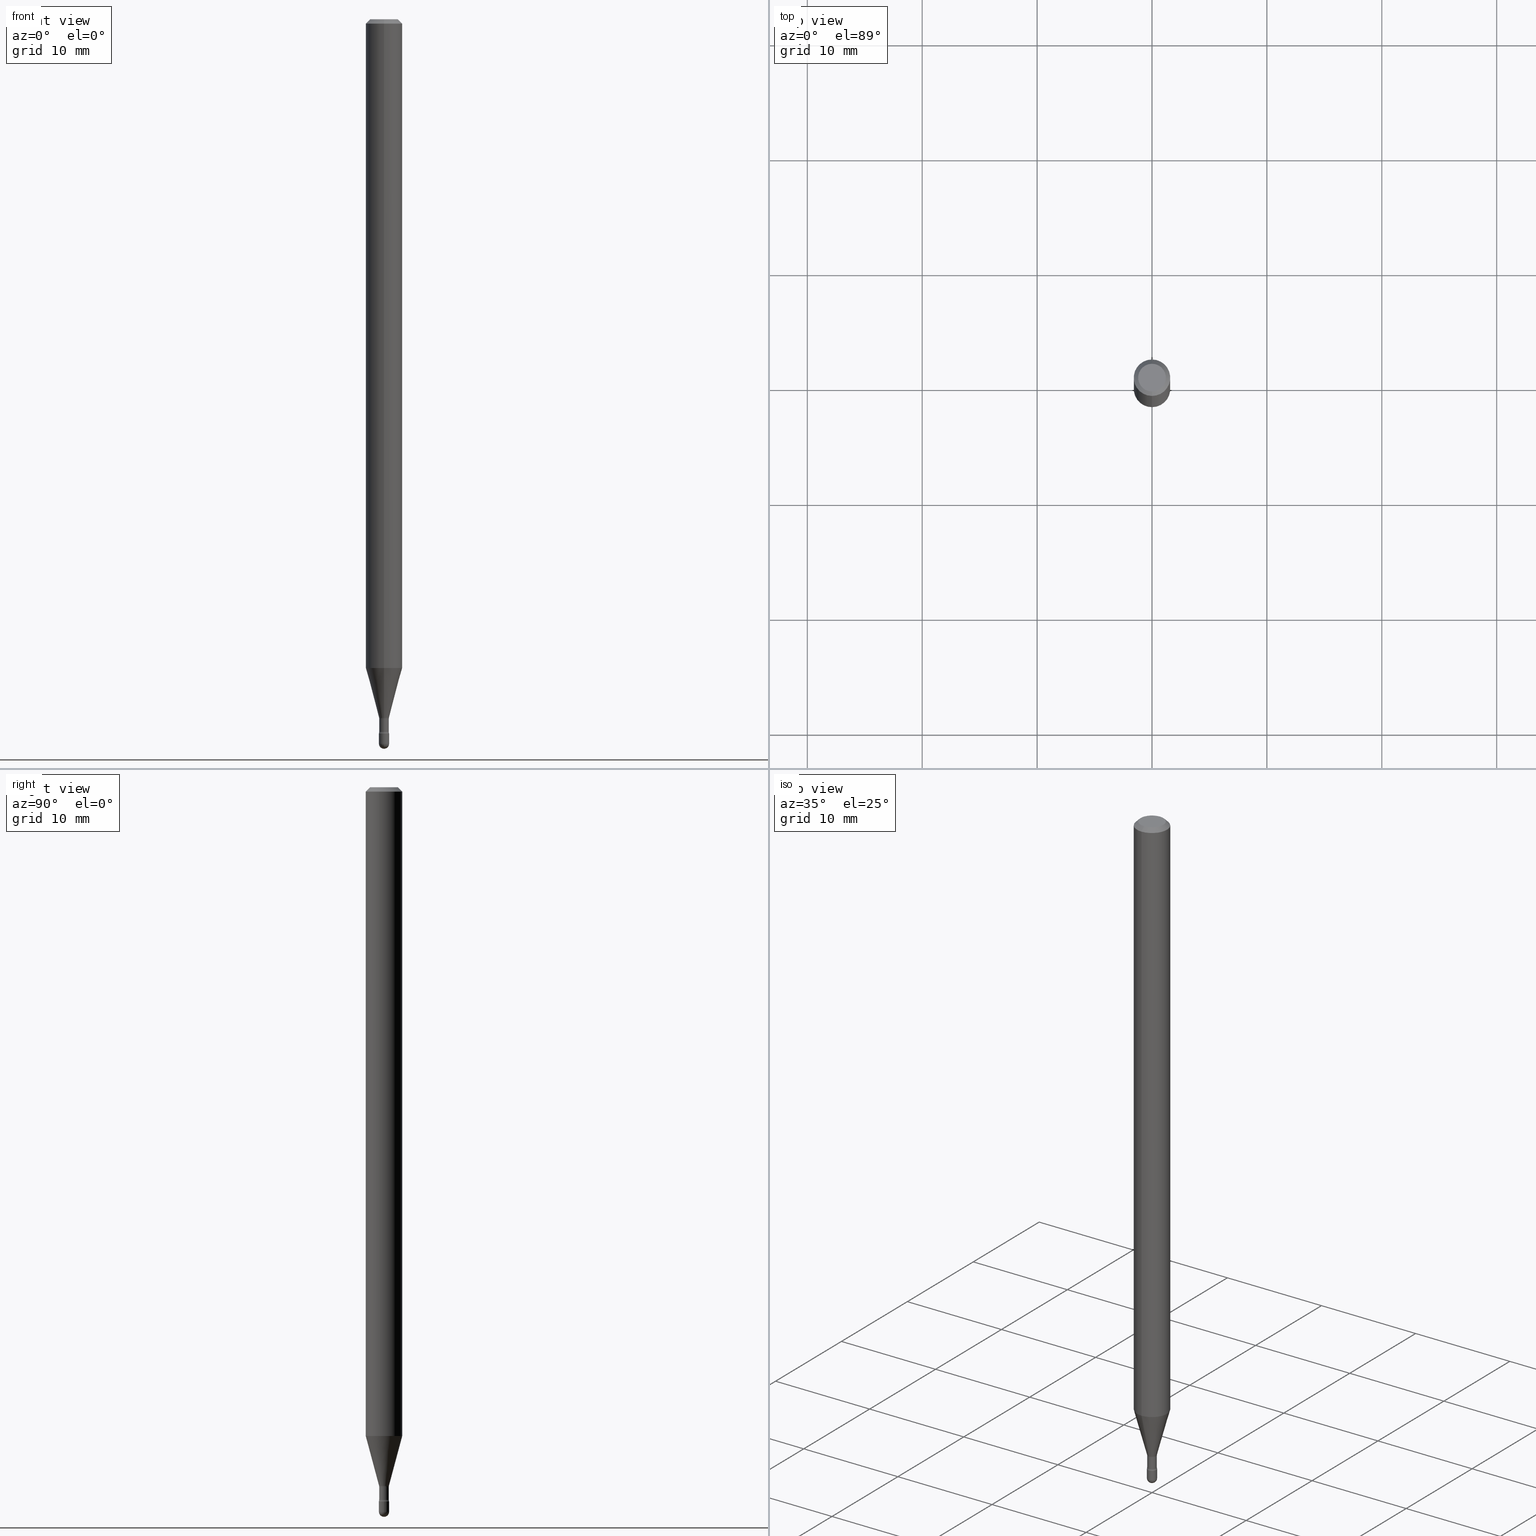
[diagram: canonical four-view strip — front | top / right | iso, engineering-drawing reading convention]
A machine part, canonical four-view strip (front | top / right | iso — engineering-drawing reading convention). The complete STEP part file that produces these views, byte-faithful:
ISO-10303-21;
HEADER;
FILE_DESCRIPTION (( 'STEP AP203' ),
    '1' );
FILE_NAME ('09452.STEP',
    '2024-04-09T23:19:39',
    ( '' ),
    ( '' ),
    'SwSTEP 2.0',
    'SolidWorks 2023',
    '' );
FILE_SCHEMA (( 'CONFIG_CONTROL_DESIGN' ));
ENDSEC;

DATA;
#1 = ORIENTED_EDGE ( 'NONE', *, *, #112, .T. ) ;
#2 = EDGE_LOOP ( 'NONE', ( #439, #155, #394, #190, #248 ) ) ;
#3 = DIRECTION ( 'NONE',  ( -2.445476480015523833E-29, 3.491470349481263853E-15, 1.000000000000000000 ) ) ;
#4 = EDGE_CURVE ( 'NONE', #533, #178, #344, .T. ) ;
#5 = EDGE_LOOP ( 'NONE', ( #391, #356, #425, #41 ) ) ;
#6 = DIRECTION ( 'NONE',  ( -2.445476480015523833E-29, 3.491470349481263853E-15, 1.000000000000000000 ) ) ;
#7 = CALENDAR_DATE ( 2024, 9, 4 ) ;
#8 = LINE ( 'NONE', #431, #31 ) ;
#9 = CC_DESIGN_APPROVAL ( #426, ( #250 ) ) ;
#10 = ORIENTED_EDGE ( 'NONE', *, *, #193, .F. ) ;
#11 = LINE ( 'NONE', #184, #96 ) ;
#12 = PERSON_AND_ORGANIZATION_ROLE ( 'design_owner' ) ;
#13 = CARTESIAN_POINT ( 'NONE',  ( 0.01749999999999999820, -8.727830476773153796E-15, -2.482500000000000817 ) ) ;
#14 = VERTEX_POINT ( 'NONE', #447 ) ;
#15 = CARTESIAN_POINT ( 'NONE',  ( 0.000000000000000000, 0.000000000000000000, 0.000000000000000000 ) ) ;
#16 = APPROVAL_ROLE ( '' ) ;
#17 = EDGE_CURVE ( 'NONE', #84, #533, #20, .T. ) ;
#18 = SPHERICAL_SURFACE ( 'NONE', #316, 0.01750000000000000860 ) ;
#19 = LINE ( 'NONE', #369, #441 ) ;
#20 = CIRCLE ( 'NONE', #557, 0.01499999999999996302 ) ;
#21 = DIRECTION ( 'NONE',  ( -6.982962677686265133E-15, -1.000000000000000000, 0.000000000000000000 ) ) ;
#22 = AXIS2_PLACEMENT_3D ( 'NONE', #211, #478, #214 ) ;
#23 = PERSON_AND_ORGANIZATION ( #53, #454 ) ;
#24 = CARTESIAN_POINT ( 'NONE',  ( -1.222018468594496598E-16, -0.01750000000000852610, -2.447000000000000064 ) ) ;
#25 = CARTESIAN_POINT ( 'NONE',  ( 5.861727071954997320E-29, -8.368992740107411140E-15, -2.396974787463811207 ) ) ;
#26 = CARTESIAN_POINT ( 'NONE',  ( -1.184388162973270680E-16, -0.01696111260567232867, -2.393092501787273285 ) ) ;
#27 = DIRECTION ( 'NONE',  ( 1.000000000000000000, -6.982962677686305365E-15, 0.000000000000000000 ) ) ;
#28 = DIRECTION ( 'NONE',  ( -2.445476480015523833E-29, 3.491470349481263853E-15, 1.000000000000000000 ) ) ;
#29 = APPROVAL_STATUS ( 'not_yet_approved' ) ;
#30 = ADVANCED_FACE ( 'NONE', ( #323 ), #457, .F. ) ;
#31 = VECTOR ( 'NONE', #338, 39.37007874015748143 ) ;
#32 = DIRECTION ( 'NONE',  ( -2.445476480015523553E-29, 3.491470349481263853E-15, 1.000000000000000000 ) ) ;
#33 = ADVANCED_FACE ( 'NONE', ( #72 ), #69, .T. ) ;
#34 = CARTESIAN_POINT ( 'NONE',  ( 5.970579338663442113E-29, -8.524404928127174921E-15, -2.441486607215153537 ) ) ;
#35 = CARTESIAN_POINT ( 'NONE',  ( -1.148697360478804295E-16, -0.01645000000000836418, -2.396974787463811207 ) ) ;
#36 = ORIENTED_EDGE ( 'NONE', *, *, #438, .F. ) ;
#37 = AXIS2_PLACEMENT_3D ( 'NONE', #143, #513, #128 ) ;
#38 = DIRECTION ( 'NONE',  ( 7.105427357601005014E-15, 1.000000000000000000, 0.000000000000000000 ) ) ;
#39 = CIRCLE ( 'NONE', #430, 0.01750000000000000167 ) ;
#40 = EDGE_CURVE ( 'NONE', #432, #379, #359, .T. ) ;
#41 = ORIENTED_EDGE ( 'NONE', *, *, #75, .F. ) ;
#42 = ORIENTED_EDGE ( 'NONE', *, *, #281, .F. ) ;
#43 = ORIENTED_EDGE ( 'NONE', *, *, #66, .F. ) ;
#44 = ORIENTED_EDGE ( 'NONE', *, *, #74, .F. ) ;
#45 = AXIS2_PLACEMENT_3D ( 'NONE', #234, #404, #27 ) ;
#46 = AXIS2_PLACEMENT_3D ( 'NONE', #122, #280, #462 ) ;
#47 = EDGE_LOOP ( 'NONE', ( #220, #353, #1, #390, #304 ) ) ;
#48 = CARTESIAN_POINT ( 'NONE',  ( 5.984062168735030320E-29, -8.543654836149177676E-15, -2.447000000000000064 ) ) ;
#49 = VERTEX_POINT ( 'NONE', #361 ) ;
#50 = DIRECTION ( 'NONE',  ( -6.982962677686265922E-15, -1.000000000000000000, 4.370956789862821150E-15 ) ) ;
#51 = PERSON_AND_ORGANIZATION ( #53, #454 ) ;
#52 = ORIENTED_EDGE ( 'NONE', *, *, #173, .F. ) ;
#53 = PERSON ( 'UNSPECIFIED', 'UNSPECIFIED', 'UNSPECIFIED', ('UNSPECIFIED'), ('UNSPECIFIED'), ('UNSPECIFIED') ) ;
#54 = CARTESIAN_POINT ( 'NONE',  ( -1.169113584055446105E-44, 1.669184350826100908E-30, 4.780733988912460139E-16 ) ) ;
#55 = DIRECTION ( 'NONE',  ( -2.438088387897960049E-29, 3.491481338843145188E-15, 1.000000000000000000 ) ) ;
#56 = AXIS2_PLACEMENT_3D ( 'NONE', #504, #410, #157 ) ;
#57 = EDGE_CURVE ( 'NONE', #351, #429, #76, .T. ) ;
#58 = DIRECTION ( 'NONE',  ( -6.982962677686266711E-15, -1.000000000000000000, 3.491470349481264247E-15 ) ) ;
#59 = PERSON_AND_ORGANIZATION ( #53, #454 ) ;
#60 = DIRECTION ( 'NONE',  ( -2.445476480015523833E-29, 3.491470349481263853E-15, 1.000000000000000000 ) ) ;
#61 = APPLICATION_PROTOCOL_DEFINITION ( 'international standard', 'config_control_design', 1994, #523 ) ;
#62 = DIRECTION ( 'NONE',  ( -2.445476480015523833E-29, 3.491470349481263853E-15, 1.000000000000000000 ) ) ;
#63 = EDGE_LOOP ( 'NONE', ( #253, #477, #186, #290 ) ) ;
#64 = DIRECTION ( 'NONE',  ( 1.000000000000000000, -6.982962677686265922E-15, 4.876176775795936353E-29 ) ) ;
#65 = MECHANICAL_CONTEXT ( 'NONE', #523, 'mechanical' ) ;
#66 = EDGE_CURVE ( 'NONE', #429, #351, #385, .T. ) ;
#67 = DIRECTION ( 'NONE',  ( -1.807323732225328562E-15, -0.2588190451025179639, 0.9659258262890690894 ) ) ;
#68 = CIRCLE ( 'NONE', #498, 0.06250000000000000000 ) ;
#69 = CYLINDRICAL_SURFACE ( 'NONE', #85, 0.01645000000000003404 ) ;
#70 = EDGE_CURVE ( 'NONE', #84, #293, #419, .T. ) ;
#71 = CARTESIAN_POINT ( 'NONE',  ( 6.070876311354603530E-29, -8.667602423678111529E-15, -2.482500000000000817 ) ) ;
#72 = FACE_OUTER_BOUND ( 'NONE', #5, .T. ) ;
#73 = DIRECTION ( 'NONE',  ( 2.445476480015523553E-29, -3.491470349481263853E-15, -1.000000000000000000 ) ) ;
#74 = EDGE_CURVE ( 'NONE', #138, #566, #328, .T. ) ;
#75 = EDGE_CURVE ( 'NONE', #293, #288, #19, .T. ) ;
#76 = CIRCLE ( 'NONE', #488, 0.01696111260566397425 ) ;
#77 = AXIS2_PLACEMENT_3D ( 'NONE', #392, #100, #469 ) ;
#78 = CARTESIAN_POINT ( 'NONE',  ( 5.436634283795472207E-29, -7.762024111851079377E-15, -2.223139060311453363 ) ) ;
#79 = DIRECTION ( 'NONE',  ( -2.445476480015523833E-29, 3.491470349481263853E-15, 1.000000000000000000 ) ) ;
#80 = DIRECTION ( 'NONE',  ( -6.982962677686265922E-15, -1.000000000000000000, 3.483106191921935554E-15 ) ) ;
#81 = ORIENTED_EDGE ( 'NONE', *, *, #562, .F. ) ;
#82 = ADVANCED_BREP_SHAPE_REPRESENTATION ( '09452', ( #294, #296, #378 ), #303 ) ;
#83 = CARTESIAN_POINT ( 'NONE',  ( 4.440892098500625669E-16, 0.06250000000000000000, 2.598565020486670724E-16 ) ) ;
#84 = VERTEX_POINT ( 'NONE', #205 ) ;
#85 = AXIS2_PLACEMENT_3D ( 'NONE', #273, #62, #546 ) ;
#86 = AXIS2_PLACEMENT_3D ( 'NONE', #463, #554, #168 ) ;
#87 = CC_DESIGN_APPROVAL ( #491, ( #549 ) ) ;
#88 = CC_DESIGN_PERSON_AND_ORGANIZATION_ASSIGNMENT ( #495, #185, ( #115 ) ) ;
#89 = ORIENTED_EDGE ( 'NONE', *, *, #500, .F. ) ;
#90 = CARTESIAN_POINT ( 'NONE',  ( -1.184388162973270680E-16, -0.01696111260567232867, -2.393092501787273285 ) ) ;
#91 = ORIENTED_EDGE ( 'NONE', *, *, #411, .T. ) ;
#92 = VERTEX_POINT ( 'NONE', #123 ) ;
#93 = ORIENTED_EDGE ( 'NONE', *, *, #145, .T. ) ;
#94 = EDGE_CURVE ( 'NONE', #178, #533, #267, .T. ) ;
#95 = AXIS2_PLACEMENT_3D ( 'NONE', #238, #116, #274 ) ;
#96 = VECTOR ( 'NONE', #532, 39.37007874015748143 ) ;
#97 = DIRECTION ( 'NONE',  ( -2.445468806185136597E-29, 3.491481338843145583E-15, 1.000000000000000000 ) ) ;
#98 = ORIENTED_EDGE ( 'NONE', *, *, #57, .T. ) ;
#99 = DIRECTION ( 'NONE',  ( 7.105427357601005014E-15, 1.000000000000000000, 0.000000000000000000 ) ) ;
#100 = DIRECTION ( 'NONE',  ( -2.445476480015523833E-29, 3.491470349481263853E-15, 1.000000000000000000 ) ) ;
#101 = CARTESIAN_POINT ( 'NONE',  ( -1.169113584055446105E-44, 1.669184350826100908E-30, 4.780733988912460139E-16 ) ) ;
#102 = EDGE_LOOP ( 'NONE', ( #382, #93, #10, #52 ) ) ;
#103 = DIRECTION ( 'NONE',  ( -2.445476480015523833E-29, 3.491470349481263853E-15, 1.000000000000000000 ) ) ;
#104 = DATE_AND_TIME ( #434, #499 ) ;
#105 = CIRCLE ( 'NONE', #358, 0.01500000000000002720 ) ;
#106 = CONICAL_SURFACE ( 'NONE', #349, 0.01696111260566397425, 0.2617993877991500740 ) ;
#107 = ORIENTED_EDGE ( 'NONE', *, *, #57, .F. ) ;
#108 = CYLINDRICAL_SURFACE ( 'NONE', #276, 0.06250000000000000000 ) ;
#109 = DATE_AND_TIME ( #490, #292 ) ;
#110 = ORIENTED_EDGE ( 'NONE', *, *, #223, .T. ) ;
#111 = DIRECTION ( 'NONE',  ( 6.982962677686265922E-15, 1.000000000000000000, -3.483106191921935554E-15 ) ) ;
#112 = EDGE_CURVE ( 'NONE', #519, #516, #370, .T. ) ;
#113 = CARTESIAN_POINT ( 'NONE',  ( 0.000000000000000000, 0.000000000000000000, 0.000000000000000000 ) ) ;
#114 = CARTESIAN_POINT ( 'NONE',  ( 5.984080946597987231E-29, -8.543627945180652230E-15, -2.447000000000000064 ) ) ;
#115 = PRODUCT_DEFINITION ( 'UNKNOWN', '', #250, #387 ) ;
#116 = DIRECTION ( 'NONE',  ( -2.445476480015523833E-29, 3.491470349481263853E-15, 1.000000000000000000 ) ) ;
#117 = CIRCLE ( 'NONE', #282, 0.01644999999999999588 ) ;
#118 = TOROIDAL_SURFACE ( 'NONE', #235, 0.03145000000000004042, 0.01499999999999996649 ) ;
#119 = CARTESIAN_POINT ( 'NONE',  ( 6.070876311354603530E-29, -8.667602423678111529E-15, -2.482500000000000817 ) ) ;
#120 = DIRECTION ( 'NONE',  ( 6.982962677686265922E-15, 1.000000000000000000, -3.491470349481263853E-15 ) ) ;
#121 = DIRECTION ( 'NONE',  ( -2.445476480015523833E-29, 3.491470349481263853E-15, 1.000000000000000000 ) ) ;
#122 = CARTESIAN_POINT ( 'NONE',  ( -2.196141762131744400E-16, -0.03145000000000837403, -2.396974787463811207 ) ) ;
#123 = CARTESIAN_POINT ( 'NONE',  ( -0.01750000000000000167, -8.481283651155627354E-15, -2.447000000000000064 ) ) ;
#124 = CARTESIAN_POINT ( 'NONE',  ( 5.861745465932958516E-29, -8.368966398884050390E-15, -2.396974787463811207 ) ) ;
#125 = AXIS2_PLACEMENT_3D ( 'NONE', #363, #103, #398 ) ;
#126 = AXIS2_PLACEMENT_3D ( 'NONE', #266, #230, #318 ) ;
#127 = CARTESIAN_POINT ( 'NONE',  ( 5.852251427622284695E-29, -8.355411513556201867E-15, -2.393092501787273285 ) ) ;
#128 = DIRECTION ( 'NONE',  ( -6.982962677686265133E-15, -1.000000000000000000, 3.491470349481263853E-15 ) ) ;
#129 = CARTESIAN_POINT ( 'NONE',  ( 3.316907271900976096E-16, 0.04749999999999999362, 3.181808081214563162E-17 ) ) ;
#130 = ORIENTED_EDGE ( 'NONE', *, *, #17, .F. ) ;
#131 = EDGE_CURVE ( 'NONE', #516, #444, #236, .T. ) ;
#132 = DIRECTION ( 'NONE',  ( 1.000000000000000000, -7.105427357601001070E-15, 4.926315373961213583E-29 ) ) ;
#133 = EDGE_LOOP ( 'NONE', ( #130, #511, #423, #343 ) ) ;
#134 = CONICAL_SURFACE ( 'NONE', #126, 0.06250000000000000000, 0.7853981633974483900 ) ;
#135 = CARTESIAN_POINT ( 'NONE',  ( 6.070876311354602409E-29, -8.667602423678108373E-15, -2.482499999999999929 ) ) ;
#136 = ORIENTED_EDGE ( 'NONE', *, *, #281, .T. ) ;
#137 = EDGE_LOOP ( 'NONE', ( #183, #522, #255, #218 ) ) ;
#138 = VERTEX_POINT ( 'NONE', #407 ) ;
#139 = ORIENTED_EDGE ( 'NONE', *, *, #264, .T. ) ;
#140 = CARTESIAN_POINT ( 'NONE',  ( -4.364351673553912750E-16, -0.06250000000000005551, -0.01499999999999986587 ) ) ;
#141 = CONICAL_SURFACE ( 'NONE', #453, 0.06250000000000000000, 0.7853981633974483900 ) ;
#142 = ORIENTED_EDGE ( 'NONE', *, *, #505, .F. ) ;
#143 = CARTESIAN_POINT ( 'NONE',  ( 5.970579338663442113E-29, -8.524404928127174921E-15, -2.441486607215153537 ) ) ;
#144 = APPROVAL_DATE_TIME ( #530, #426 ) ;
#145 = EDGE_CURVE ( 'NONE', #351, #49, #325, .T. ) ;
#146 = ORIENTED_EDGE ( 'NONE', *, *, #326, .T. ) ;
#147 = DIRECTION ( 'NONE',  ( -6.982962677686265922E-15, -1.000000000000000000, 3.491470349481265036E-15 ) ) ;
#148 = PERSON_AND_ORGANIZATION_ROLE ( 'design_supplier' ) ;
#149 = EDGE_LOOP ( 'NONE', ( #36, #91, #110, #44 ) ) ;
#150 = DIRECTION ( 'NONE',  ( -6.982962677686265922E-15, -1.000000000000000000, 0.000000000000000000 ) ) ;
#151 = COORDINATED_UNIVERSAL_TIME_OFFSET ( 5, 0, .BEHIND. ) ;
#152 = DIRECTION ( 'NONE',  ( 1.000000000000000000, -6.982962677686265922E-15, 4.876176775795935793E-29 ) ) ;
#153 = VECTOR ( 'NONE', #199, 39.37007874015748143 ) ;
#154 = CIRCLE ( 'NONE', #324, 0.01749999999999999820 ) ;
#155 = ORIENTED_EDGE ( 'NONE', *, *, #502, .T. ) ;
#156 = FACE_OUTER_BOUND ( 'NONE', #287, .T. ) ;
#157 = DIRECTION ( 'NONE',  ( -6.982962677686265133E-15, -1.000000000000000000, 0.000000000000000000 ) ) ;
#158 = FACE_OUTER_BOUND ( 'NONE', #259, .T. ) ;
#159 = DATE_AND_TIME ( #7, #472 ) ;
#160 = DIRECTION ( 'NONE',  ( -6.982962677686266711E-15, -1.000000000000000000, 0.000000000000000000 ) ) ;
#161 = AXIS2_PLACEMENT_3D ( 'NONE', #412, #32, #367 ) ;
#162 = APPROVAL_PERSON_ORGANIZATION ( #51, #426, #16 ) ;
#163 =( LENGTH_UNIT ( ) NAMED_UNIT ( * ) SI_UNIT ( $, .METRE. ) );
#164 = LINE ( 'NONE', #26, #181 ) ;
#165 = DIRECTION ( 'NONE',  ( 1.839019923739598738E-15, 0.2588190451025247363, 0.9659258262890673130 ) ) ;
#166 = DIRECTION ( 'NONE',  ( -6.982962677686265922E-15, -1.000000000000000000, 0.000000000000000000 ) ) ;
#167 = CALENDAR_DATE ( 2024, 9, 4 ) ;
#168 = DIRECTION ( 'NONE',  ( -6.982962677686265133E-15, -1.000000000000000000, 0.000000000000000000 ) ) ;
#169 = CIRCLE ( 'NONE', #565, 0.01750000000000000860 ) ;
#170 = ORIENTED_EDGE ( 'NONE', *, *, #438, .T. ) ;
#171 =( NAMED_UNIT ( * ) PLANE_ANGLE_UNIT ( ) SI_UNIT ( $, .RADIAN. ) );
#172 = ORIENTED_EDGE ( 'NONE', *, *, #471, .T. ) ;
#173 = EDGE_CURVE ( 'NONE', #429, #187, #164, .T. ) ;
#174 = AXIS2_PLACEMENT_3D ( 'NONE', #182, #355, #537 ) ;
#175 = AXIS2_PLACEMENT_3D ( 'NONE', #129, #73, #120 ) ;
#176 = CARTESIAN_POINT ( 'NONE',  ( 6.070876311354602409E-29, -8.667602423678108373E-15, -2.482499999999999929 ) ) ;
#177 = EDGE_LOOP ( 'NONE', ( #473, #531, #561, #209 ) ) ;
#178 = VERTEX_POINT ( 'NONE', #24 ) ;
#179 = SPHERICAL_SURFACE ( 'NONE', #348, 0.01750000000000000860 ) ;
#180 = ADVANCED_FACE ( 'NONE', ( #197 ), #365, .T. ) ;
#181 = VECTOR ( 'NONE', #67, 39.37007874015748854 ) ;
#182 = CARTESIAN_POINT ( 'NONE',  ( 5.984080946597987231E-29, -8.543627945180652230E-15, -2.447000000000000064 ) ) ;
#183 = ORIENTED_EDGE ( 'NONE', *, *, #411, .F. ) ;
#184 = CARTESIAN_POINT ( 'NONE',  ( 1.168842800325367224E-16, 0.01645000000000003404, 4.206387116422791825E-16 ) ) ;
#185 = PERSON_AND_ORGANIZATION_ROLE ( 'creator' ) ;
#186 = ORIENTED_EDGE ( 'NONE', *, *, #223, .F. ) ;
#187 = VERTEX_POINT ( 'NONE', #461 ) ;
#188 = CARTESIAN_POINT ( 'NONE',  ( -1.148697360478798871E-16, -0.01645000000000860010, -2.441486607215153537 ) ) ;
#189 = ADVANCED_FACE ( 'NONE', ( #545 ), #465, .F. ) ;
#190 = ORIENTED_EDGE ( 'NONE', *, *, #131, .F. ) ;
#191 = CARTESIAN_POINT ( 'NONE',  ( 3.668214720023305841E-31, -5.237205524221924868E-17, -0.01500000000000008271 ) ) ;
#192 = CARTESIAN_POINT ( 'NONE',  ( 5.852251427622284695E-29, -8.355411513556201867E-15, -2.393092501787273285 ) ) ;
#193 = EDGE_CURVE ( 'NONE', #187, #49, #302, .T. ) ;
#194 = CIRCLE ( 'NONE', #507, 0.01749999999999999820 ) ;
#195 = CIRCLE ( 'NONE', #77, 0.04749999999999999362 ) ;
#196 = FACE_OUTER_BOUND ( 'NONE', #2, .T. ) ;
#197 = FACE_OUTER_BOUND ( 'NONE', #63, .T. ) ;
#198 = DIRECTION ( 'NONE',  ( -6.982962677686265133E-15, -1.000000000000000000, 3.491470349481263853E-15 ) ) ;
#199 = DIRECTION ( 'NONE',  ( -2.445468806185136877E-29, 3.491481338843145188E-15, 1.000000000000000000 ) ) ;
#200 = CARTESIAN_POINT ( 'NONE',  ( -1.169113584055446105E-44, 1.669184350826100908E-30, 4.780733988912460139E-16 ) ) ;
#201 = CONICAL_SURFACE ( 'NONE', #125, 0.01696111260566397425, 0.2617993877991500740 ) ;
#202 = CIRCLE ( 'NONE', #216, 0.01750000000000000167 ) ;
#203 = CC_DESIGN_SECURITY_CLASSIFICATION ( #549, ( #250 ) ) ;
#204 =( CONVERSION_BASED_UNIT ( 'INCH', #240 ) LENGTH_UNIT ( ) NAMED_UNIT ( #322 ) );
#205 = CARTESIAN_POINT ( 'NONE',  ( 1.206146293953369389E-16, 0.01644999999999155124, -2.441486607215153537 ) ) ;
#206 = DIRECTION ( 'NONE',  ( -6.982962677686265922E-15, -1.000000000000000000, 4.370956789862821150E-15 ) ) ;
#207 = VERTEX_POINT ( 'NONE', #140 ) ;
#208 = CC_DESIGN_APPROVAL ( #239, ( #115 ) ) ;
#209 = ORIENTED_EDGE ( 'NONE', *, *, #529, .F. ) ;
#210 = EDGE_LOOP ( 'NONE', ( #224, #98, #521, #42 ) ) ;
#211 = CARTESIAN_POINT ( 'NONE',  ( 3.668214720023305841E-31, -5.237205524221924868E-17, -0.01500000000000008271 ) ) ;
#212 = EDGE_LOOP ( 'NONE', ( #380, #43, #309, #317 ) ) ;
#213 = ORIENTED_EDGE ( 'NONE', *, *, #418, .T. ) ;
#214 = DIRECTION ( 'NONE',  ( -6.982962677686265922E-15, -1.000000000000000000, 3.483106191921935554E-15 ) ) ;
#215 = EDGE_LOOP ( 'NONE', ( #89, #299, #81, #254 ) ) ;
#216 = AXIS2_PLACEMENT_3D ( 'NONE', #422, #97, #427 ) ;
#217 = CARTESIAN_POINT ( 'NONE',  ( 1.222018468595703801E-16, 0.01749999999999133499, -2.482500000000000817 ) ) ;
#218 = ORIENTED_EDGE ( 'NONE', *, *, #486, .T. ) ;
#219 = FACE_OUTER_BOUND ( 'NONE', #559, .T. ) ;
#220 = ORIENTED_EDGE ( 'NONE', *, *, #502, .F. ) ;
#221 = CARTESIAN_POINT ( 'NONE',  ( 3.668214720023305841E-31, -5.237205524221924868E-17, -0.01500000000000008271 ) ) ;
#222 = APPROVAL_STATUS ( 'not_yet_approved' ) ;
#223 = EDGE_CURVE ( 'NONE', #207, #566, #68, .T. ) ;
#224 = ORIENTED_EDGE ( 'NONE', *, *, #145, .F. ) ;
#225 = AXIS2_PLACEMENT_3D ( 'NONE', #114, #373, #319 ) ;
#226 = LOCAL_TIME ( 19, 19, 39.00000000000000000, #535 ) ;
#227 = LOCAL_TIME ( 19, 19, 39.00000000000000000, #331 ) ;
#228 = CARTESIAN_POINT ( 'NONE',  ( 6.070876311354603530E-29, -8.667602423678111529E-15, -2.482500000000000817 ) ) ;
#229 = PERSON_AND_ORGANIZATION_ROLE ( 'classification_officer' ) ;
#230 = DIRECTION ( 'NONE',  ( 2.445476480015523833E-29, -3.491470349481263853E-15, -1.000000000000000000 ) ) ;
#231 = APPLICATION_PROTOCOL_DEFINITION ( 'international standard', 'config_control_design', 1994, #342 ) ;
#232 = DIRECTION ( 'NONE',  ( -2.445476480015523833E-29, 3.491470349481263853E-15, 1.000000000000000000 ) ) ;
#233 = DIRECTION ( 'NONE',  ( -2.445476480015523833E-29, 3.491470349481263853E-15, 1.000000000000000000 ) ) ;
#234 = CARTESIAN_POINT ( 'NONE',  ( 6.070876311354603530E-29, -8.667602423678111529E-15, -2.482500000000000817 ) ) ;
#235 = AXIS2_PLACEMENT_3D ( 'NONE', #34, #335, #512 ) ;
#236 = LINE ( 'NONE', #493, #153 ) ;
#237 = ADVANCED_FACE ( 'NONE', ( #245 ), #291, .F. ) ;
#238 = CARTESIAN_POINT ( 'NONE',  ( 5.852251427622284695E-29, -8.355411513556201867E-15, -2.393092501787273285 ) ) ;
#239 = APPROVAL ( #313, 'UNSPECIFIED' ) ;
#240 = LENGTH_MEASURE_WITH_UNIT ( LENGTH_MEASURE( 0.02539999999999999897 ), #163 );
#241 = CARTESIAN_POINT ( 'NONE',  ( 5.436634283795472207E-29, -7.762024111851079377E-15, -2.223139060311453363 ) ) ;
#242 = DIRECTION ( 'NONE',  ( -2.445476480015523833E-29, 3.491470349481263853E-15, 1.000000000000000000 ) ) ;
#243 = AXIS2_PLACEMENT_3D ( 'NONE', #539, #233, #21 ) ;
#244 = CARTESIAN_POINT ( 'NONE',  ( 1.243449787580772513E-16, 0.01749999999999143907, -2.447000000000000064 ) ) ;
#245 = FACE_OUTER_BOUND ( 'NONE', #133, .T. ) ;
#246 = ORIENTED_EDGE ( 'NONE', *, *, #474, .T. ) ;
#247 = CARTESIAN_POINT ( 'NONE',  ( 0.01750000000000000167, -8.665856683008687659E-15, -2.447000000000000064 ) ) ;
#248 = ORIENTED_EDGE ( 'NONE', *, *, #362, .T. ) ;
#249 = AXIS2_PLACEMENT_3D ( 'NONE', #78, #3, #206 ) ;
#250 = PRODUCT_DEFINITION_FORMATION_WITH_SPECIFIED_SOURCE ( 'ANY', '', #366, .NOT_KNOWN. ) ;
#251 =( NAMED_UNIT ( * ) SI_UNIT ( $, .STERADIAN. ) SOLID_ANGLE_UNIT ( ) );
#252 = ADVANCED_FACE ( 'NONE', ( #286 ), #179, .T. ) ;
#253 = ORIENTED_EDGE ( 'NONE', *, *, #193, .T. ) ;
#254 = ORIENTED_EDGE ( 'NONE', *, *, #40, .F. ) ;
#255 = ORIENTED_EDGE ( 'NONE', *, *, #74, .T. ) ;
#256 = AXIS2_PLACEMENT_3D ( 'NONE', #124, #242, #166 ) ;
#257 = DIRECTION ( 'NONE',  ( 1.000000000000000000, -6.982962677686265922E-15, 4.883557194083112340E-29 ) ) ;
#258 = DIRECTION ( 'NONE',  ( 1.000000000000000000, -7.105427357601001070E-15, 4.926315373961213583E-29 ) ) ;
#259 = EDGE_LOOP ( 'NONE', ( #475, #136, #246, #448 ) ) ;
#260 = COORDINATED_UNIVERSAL_TIME_OFFSET ( 5, 0, .BEHIND. ) ;
#261 = DIRECTION ( 'NONE',  ( 6.982962677686265922E-15, 1.000000000000000000, 0.000000000000000000 ) ) ;
#262 = DIRECTION ( 'NONE',  ( -2.445476480015523833E-29, 3.491470349481263853E-15, 1.000000000000000000 ) ) ;
#263 = PERSON_AND_ORGANIZATION_ROLE ( 'creator' ) ;
#264 = EDGE_CURVE ( 'NONE', #351, #297, #105, .T. ) ;
#265 = ORIENTED_EDGE ( 'NONE', *, *, #94, .F. ) ;
#266 = CARTESIAN_POINT ( 'NONE',  ( 3.668214720023305841E-31, -5.237205524221924868E-17, -0.01500000000000008271 ) ) ;
#267 = CIRCLE ( 'NONE', #225, 0.01750000000000000167 ) ;
#268 = CIRCLE ( 'NONE', #46, 0.01500000000000003587 ) ;
#269 = FACE_OUTER_BOUND ( 'NONE', #210, .T. ) ;
#270 = DIRECTION ( 'NONE',  ( 1.000000000000000000, 0.000000000000000000, 0.000000000000000000 ) ) ;
#271 = FACE_OUTER_BOUND ( 'NONE', #337, .T. ) ;
#272 = DIRECTION ( 'NONE',  ( 0.000000000000000000, 0.000000000000000000, 1.000000000000000000 ) ) ;
#273 = CARTESIAN_POINT ( 'NONE',  ( -1.169113584055446105E-44, 1.669184350826100908E-30, 4.780733988912460139E-16 ) ) ;
#274 = DIRECTION ( 'NONE',  ( -6.982962677686266711E-15, -1.000000000000000000, 0.000000000000000000 ) ) ;
#275 = CLOSED_SHELL ( 'NONE', ( #307, #252, #510, #393, #459 ) ) ;
#276 = AXIS2_PLACEMENT_3D ( 'NONE', #101, #262, #147 ) ;
#277 = DIRECTION ( 'NONE',  ( 1.000000000000000000, -6.982962677686305365E-15, 0.000000000000000000 ) ) ;
#278 = CARTESIAN_POINT ( 'NONE',  ( 4.440892098501173434E-16, 0.06249999999999995143, -0.01500000000000030129 ) ) ;
#279 = DIRECTION ( 'NONE',  ( -6.982962677686265922E-15, -1.000000000000000000, 3.491470349481265036E-15 ) ) ;
#280 = DIRECTION ( 'NONE',  ( -1.000000000000000000, 6.982962677686265922E-15, -4.883557194083112340E-29 ) ) ;
#281 = EDGE_CURVE ( 'NONE', #49, #187, #314, .T. ) ;
#282 = AXIS2_PLACEMENT_3D ( 'NONE', #305, #543, #150 ) ;
#283 = AXIS2_PLACEMENT_3D ( 'NONE', #458, #371, #551 ) ;
#284 = PRODUCT_RELATED_PRODUCT_CATEGORY ( 'detail', '', ( #366 ) ) ;
#285 = DIRECTION ( 'NONE',  ( -2.445468806185136597E-29, 3.491481338843145583E-15, 1.000000000000000000 ) ) ;
#286 = FACE_OUTER_BOUND ( 'NONE', #215, .T. ) ;
#287 = EDGE_LOOP ( 'NONE', ( #518, #563, #528, #421 ) ) ;
#288 = VERTEX_POINT ( 'NONE', #35 ) ;
#289 = ADVANCED_FACE ( 'NONE', ( #269 ), #201, .T. ) ;
#290 = ORIENTED_EDGE ( 'NONE', *, *, #474, .F. ) ;
#291 = TOROIDAL_SURFACE ( 'NONE', #37, 0.03145000000000004042, 0.01499999999999996649 ) ;
#292 = LOCAL_TIME ( 19, 19, 39.00000000000000000, #151 ) ;
#293 = VERTEX_POINT ( 'NONE', #188 ) ;
#294 = MANIFOLD_SOLID_BREP ( 'Body-Move/Copy2[1]', #275 ) ;
#295 = DIRECTION ( 'NONE',  ( -7.105427357601001859E-15, -1.000000000000000000, 0.000000000000000000 ) ) ;
#296 = MANIFOLD_SOLID_BREP ( 'Body-Move/Copy2[2]', #480 ) ;
#297 = VERTEX_POINT ( 'NONE', #494 ) ;
#298 = DIRECTION ( 'NONE',  ( -2.445468806185136597E-29, 3.491481338843145583E-15, 1.000000000000000000 ) ) ;
#299 = ORIENTED_EDGE ( 'NONE', *, *, #505, .T. ) ;
#300 = CARTESIAN_POINT ( 'NONE',  ( 2.234656903966101221E-16, 0.03144999999999163048, -2.396974787463811207 ) ) ;
#301 = CC_DESIGN_PERSON_AND_ORGANIZATION_ASSIGNMENT ( #401, #12, ( #366 ) ) ;
#302 = CIRCLE ( 'NONE', #402, 0.06250000000000000000 ) ;
#303 =( GEOMETRIC_REPRESENTATION_CONTEXT ( 3 ) GLOBAL_UNCERTAINTY_ASSIGNED_CONTEXT ( ( #476 ) ) GLOBAL_UNIT_ASSIGNED_CONTEXT ( ( #204, #171, #251 ) ) REPRESENTATION_CONTEXT ( 'NONE', 'WORKASPACE' ) );
#304 = ORIENTED_EDGE ( 'NONE', *, *, #418, .F. ) ;
#305 = CARTESIAN_POINT ( 'NONE',  ( 5.861745465932958516E-29, -8.368966398884050390E-15, -2.396974787463811207 ) ) ;
#306 = PERSON_AND_ORGANIZATION ( #53, #454 ) ;
#307 = ADVANCED_FACE ( 'NONE', ( #196 ), #445, .T. ) ;
#308 = DIRECTION ( 'NONE',  ( -4.851104656540964275E-15, -0.7071067811865500152, -0.7071067811865450192 ) ) ;
#309 = ORIENTED_EDGE ( 'NONE', *, *, #467, .T. ) ;
#310 = LINE ( 'NONE', #485, #420 ) ;
#311 = SECURITY_CLASSIFICATION_LEVEL ( 'unclassified' ) ;
#312 = CARTESIAN_POINT ( 'NONE',  ( -0.01749999999999999820, -8.481283651155627354E-15, -2.482500000000000817 ) ) ;
#313 = APPROVAL_STATUS ( 'not_yet_approved' ) ;
#314 = CIRCLE ( 'NONE', #249, 0.06250000000000000000 ) ;
#315 = FACE_OUTER_BOUND ( 'NONE', #515, .T. ) ;
#316 = AXIS2_PLACEMENT_3D ( 'NONE', #357, #400, #395 ) ;
#317 = ORIENTED_EDGE ( 'NONE', *, *, #347, .T. ) ;
#318 = DIRECTION ( 'NONE',  ( 6.982962677686265922E-15, 1.000000000000000000, -3.483106191921935554E-15 ) ) ;
#319 = DIRECTION ( 'NONE',  ( -6.982962677686265922E-15, -1.000000000000000000, 0.000000000000000000 ) ) ;
#320 = CARTESIAN_POINT ( 'NONE',  ( 2.023608659019657597E-45, -2.889053777927698999E-31, -8.274755406623474876E-17 ) ) ;
#321 = APPROVAL_DATE_TIME ( #159, #239 ) ;
#322 = DIMENSIONAL_EXPONENTS ( 1.000000000000000000, 0.000000000000000000, 0.000000000000000000, 0.000000000000000000, 0.000000000000000000, 0.000000000000000000, 0.000000000000000000 ) ;
#323 = FACE_OUTER_BOUND ( 'NONE', #334, .T. ) ;
#324 = AXIS2_PLACEMENT_3D ( 'NONE', #71, #285, #468 ) ;
#325 = LINE ( 'NONE', #452, #377 ) ;
#326 = EDGE_CURVE ( 'NONE', #138, #14, #413, .T. ) ;
#327 = DIRECTION ( 'NONE',  ( -2.445476480015523833E-29, 3.491470349481263853E-15, 1.000000000000000000 ) ) ;
#328 = LINE ( 'NONE', #550, #396 ) ;
#329 = CARTESIAN_POINT ( 'NONE',  ( -4.364351673553916201E-16, -0.06250000000000000000, 6.962902957338251033E-16 ) ) ;
#330 = CC_DESIGN_DATE_AND_TIME_ASSIGNMENT ( #109, #406, ( #549 ) ) ;
#331 = COORDINATED_UNIVERSAL_TIME_OFFSET ( 5, 0, .BEHIND. ) ;
#332 = PLANE ( 'NONE',  #175 ) ;
#333 = AXIS2_PLACEMENT_3D ( 'NONE', #135, #257, #261 ) ;
#334 = EDGE_LOOP ( 'NONE', ( #265, #384 ) ) ;
#335 = DIRECTION ( 'NONE',  ( -2.445476480015523833E-29, 3.491470349481263853E-15, 1.000000000000000000 ) ) ;
#336 = ORIENTED_EDGE ( 'NONE', *, *, #424, .T. ) ;
#337 = EDGE_LOOP ( 'NONE', ( #142, #481, #340, #339 ) ) ;
#338 = DIRECTION ( 'NONE',  ( -2.445468806185136877E-29, 3.491481338843145188E-15, 1.000000000000000000 ) ) ;
#339 = ORIENTED_EDGE ( 'NONE', *, *, #112, .F. ) ;
#340 = ORIENTED_EDGE ( 'NONE', *, *, #362, .F. ) ;
#341 = CC_DESIGN_PERSON_AND_ORGANIZATION_ASSIGNMENT ( #59, #229, ( #549 ) ) ;
#342 = APPLICATION_CONTEXT ( 'configuration controlled 3d designs of mechanical parts and assemblies' ) ;
#343 = ORIENTED_EDGE ( 'NONE', *, *, #94, .T. ) ;
#344 = CIRCLE ( 'NONE', #174, 0.01750000000000000167 ) ;
#345 = TOROIDAL_SURFACE ( 'NONE', #386, 0.03145000000000000573, 0.01500000000000003240 ) ;
#346 = DIRECTION ( 'NONE',  ( -1.000000000000000000, 7.105427357601001070E-15, -4.926315508542082329E-29 ) ) ;
#347 = EDGE_CURVE ( 'NONE', #288, #297, #117, .T. ) ;
#348 = AXIS2_PLACEMENT_3D ( 'NONE', #525, #464, #416 ) ;
#349 = AXIS2_PLACEMENT_3D ( 'NONE', #127, #327, #503 ) ;
#350 = CALENDAR_DATE ( 2024, 9, 4 ) ;
#351 = VERTEX_POINT ( 'NONE', #449 ) ;
#352 = DIRECTION ( 'NONE',  ( -6.982962677686266711E-15, -1.000000000000000000, 3.491470349481263064E-15 ) ) ;
#353 = ORIENTED_EDGE ( 'NONE', *, *, #562, .T. ) ;
#354 = DIRECTION ( 'NONE',  ( 2.445476480015523833E-29, -3.491470349481263853E-15, -1.000000000000000000 ) ) ;
#355 = DIRECTION ( 'NONE',  ( -2.445476480015523833E-29, 3.491470349481263853E-15, 1.000000000000000000 ) ) ;
#356 = ORIENTED_EDGE ( 'NONE', *, *, #408, .T. ) ;
#357 = CARTESIAN_POINT ( 'NONE',  ( 6.070876311354602409E-29, -8.667602423678108373E-15, -2.482499999999999929 ) ) ;
#358 = AXIS2_PLACEMENT_3D ( 'NONE', #300, #132, #38 ) ;
#359 = CIRCLE ( 'NONE', #428, 0.01749999999999999820 ) ;
#360 = CIRCLE ( 'NONE', #256, 0.01644999999999999588 ) ;
#361 = CARTESIAN_POINT ( 'NONE',  ( 4.440892098501167517E-16, 0.06249999999999222150, -2.223139060311453807 ) ) ;
#362 = EDGE_CURVE ( 'NONE', #516, #432, #194, .T. ) ;
#363 = CARTESIAN_POINT ( 'NONE',  ( 5.852251427622284695E-29, -8.355411513556201867E-15, -2.393092501787273285 ) ) ;
#364 = APPROVAL_ROLE ( '' ) ;
#365 = CYLINDRICAL_SURFACE ( 'NONE', #564, 0.06250000000000000000 ) ;
#366 = PRODUCT ( '09452', '09452', '', ( #65 ) ) ;
#367 = DIRECTION ( 'NONE',  ( -6.982962677686265922E-15, -1.000000000000000000, 3.491470349481263853E-15 ) ) ;
#368 = ADVANCED_FACE ( 'NONE', ( #487 ), #141, .T. ) ;
#369 = CARTESIAN_POINT ( 'NONE',  ( -1.148697360479393229E-16, -0.01645000000000003404, 5.355080861402129932E-16 ) ) ;
#370 = CIRCLE ( 'NONE', #45, 0.01749999999999999820 ) ;
#371 = DIRECTION ( 'NONE',  ( -2.445468806185136597E-29, 3.491481338843145583E-15, 1.000000000000000000 ) ) ;
#372 = APPROVAL_PERSON_ORGANIZATION ( #460, #491, #409 ) ;
#373 = DIRECTION ( 'NONE',  ( -2.445476480015523833E-29, 3.491470349481263853E-15, 1.000000000000000000 ) ) ;
#374 = CYLINDRICAL_SURFACE ( 'NONE', #283, 0.01750000000000000167 ) ;
#375 = PRODUCT_DEFINITION_SHAPE ( 'NONE', 'NONE',  #115 ) ;
#376 = FACE_OUTER_BOUND ( 'NONE', #47, .T. ) ;
#377 = VECTOR ( 'NONE', #165, 39.37007874015748854 ) ;
#378 = AXIS2_PLACEMENT_3D ( 'NONE', #113, #272, #270 ) ;
#379 = VERTEX_POINT ( 'NONE', #312 ) ;
#380 = ORIENTED_EDGE ( 'NONE', *, *, #264, .F. ) ;
#381 = ADVANCED_FACE ( 'NONE', ( #158 ), #108, .T. ) ;
#382 = ORIENTED_EDGE ( 'NONE', *, *, #66, .T. ) ;
#383 = ADVANCED_FACE ( 'NONE', ( #436 ), #134, .T. ) ;
#384 = ORIENTED_EDGE ( 'NONE', *, *, #4, .F. ) ;
#385 = CIRCLE ( 'NONE', #95, 0.01696111260566397425 ) ;
#386 = AXIS2_PLACEMENT_3D ( 'NONE', #25, #456, #198 ) ;
#387 = DESIGN_CONTEXT ( 'detailed design', #342, 'design' ) ;
#388 = ADVANCED_FACE ( 'NONE', ( #156 ), #399, .T. ) ;
#389 = CARTESIAN_POINT ( 'NONE',  ( 2.234656903966115026E-16, 0.03144999999999151946, -2.441486607215153537 ) ) ;
#390 = ORIENTED_EDGE ( 'NONE', *, *, #131, .T. ) ;
#391 = ORIENTED_EDGE ( 'NONE', *, *, #405, .T. ) ;
#392 = CARTESIAN_POINT ( 'NONE',  ( 2.023608659019657597E-45, -2.889053777927698999E-31, -8.274755406623474876E-17 ) ) ;
#393 = ADVANCED_FACE ( 'NONE', ( #271 ), #18, .T. ) ;
#394 = ORIENTED_EDGE ( 'NONE', *, *, #424, .F. ) ;
#395 = DIRECTION ( 'NONE',  ( 6.982962677686265922E-15, 1.000000000000000000, 0.000000000000000000 ) ) ;
#396 = VECTOR ( 'NONE', #455, 39.37007874015748143 ) ;
#397 = APPROVAL_PERSON_ORGANIZATION ( #23, #239, #364 ) ;
#398 = DIRECTION ( 'NONE',  ( -6.982962677686266711E-15, -1.000000000000000000, 0.000000000000000000 ) ) ;
#399 = CYLINDRICAL_SURFACE ( 'NONE', #442, 0.01645000000000003404 ) ;
#400 = DIRECTION ( 'NONE',  ( -1.000000000000000000, 6.982962677686265922E-15, -4.883557194083112340E-29 ) ) ;
#401 = PERSON_AND_ORGANIZATION ( #53, #454 ) ;
#402 = AXIS2_PLACEMENT_3D ( 'NONE', #241, #433, #50 ) ;
#403 = CIRCLE ( 'NONE', #333, 0.01750000000000000860 ) ;
#404 = DIRECTION ( 'NONE',  ( -2.445468806185136597E-29, 3.491481338843145583E-15, 1.000000000000000000 ) ) ;
#405 = EDGE_CURVE ( 'NONE', #293, #84, #414, .T. ) ;
#406 = DATE_TIME_ROLE ( 'classification_date' ) ;
#407 = CARTESIAN_POINT ( 'NONE',  ( 3.840629472727447874E-16, 0.04749999999999999362, -2.485923956665947867E-16 ) ) ;
#408 = EDGE_CURVE ( 'NONE', #84, #297, #11, .T. ) ;
#409 = APPROVAL_ROLE ( '' ) ;
#410 = DIRECTION ( 'NONE',  ( -2.445476480015523833E-29, 3.491470349481263853E-15, 1.000000000000000000 ) ) ;
#411 = EDGE_CURVE ( 'NONE', #14, #207, #310, .T. ) ;
#412 = CARTESIAN_POINT ( 'NONE',  ( 1.222018468595694927E-16, 0.01749999999999145642, -2.447000000000000064 ) ) ;
#413 = CIRCLE ( 'NONE', #540, 0.04749999999999999362 ) ;
#414 = CIRCLE ( 'NONE', #243, 0.01645000000000007567 ) ;
#415 = FACE_OUTER_BOUND ( 'NONE', #177, .T. ) ;
#416 = DIRECTION ( 'NONE',  ( 6.982962677686265922E-15, 1.000000000000000000, 0.000000000000000000 ) ) ;
#417 = CARTESIAN_POINT ( 'NONE',  ( 5.861727071954997320E-29, -8.368992740107411140E-15, -2.396974787463811207 ) ) ;
#418 = EDGE_CURVE ( 'NONE', #92, #444, #39, .T. ) ;
#419 = CIRCLE ( 'NONE', #56, 0.01645000000000007567 ) ;
#420 = VECTOR ( 'NONE', #308, 39.37007874015748143 ) ;
#421 = ORIENTED_EDGE ( 'NONE', *, *, #471, .F. ) ;
#422 = CARTESIAN_POINT ( 'NONE',  ( 5.984062168735030320E-29, -8.543654836149177676E-15, -2.447000000000000064 ) ) ;
#423 = ORIENTED_EDGE ( 'NONE', *, *, #529, .T. ) ;
#424 = EDGE_CURVE ( 'NONE', #444, #92, #202, .T. ) ;
#425 = ORIENTED_EDGE ( 'NONE', *, *, #347, .F. ) ;
#426 = APPROVAL ( #222, 'UNSPECIFIED' ) ;
#427 = DIRECTION ( 'NONE',  ( 1.000000000000000000, -6.982962677686248567E-15, 0.000000000000000000 ) ) ;
#428 = AXIS2_PLACEMENT_3D ( 'NONE', #119, #496, #277 ) ;
#429 = VERTEX_POINT ( 'NONE', #90 ) ;
#430 = AXIS2_PLACEMENT_3D ( 'NONE', #48, #298, #479 ) ;
#431 = CARTESIAN_POINT ( 'NONE',  ( -0.01750000000000000167, 1.243449787580175444E-16, -8.608136407946085539E-31 ) ) ;
#432 = VERTEX_POINT ( 'NONE', #217 ) ;
#433 = DIRECTION ( 'NONE',  ( -2.445476480015523833E-29, 3.491470349481263853E-15, 1.000000000000000000 ) ) ;
#434 = CALENDAR_DATE ( 2024, 9, 4 ) ;
#435 = EDGE_LOOP ( 'NONE', ( #146, #170 ) ) ;
#436 = FACE_OUTER_BOUND ( 'NONE', #137, .T. ) ;
#437 = PERSON_AND_ORGANIZATION ( #53, #454 ) ;
#438 = EDGE_CURVE ( 'NONE', #14, #138, #195, .T. ) ;
#439 = ORIENTED_EDGE ( 'NONE', *, *, #40, .T. ) ;
#440 = DIRECTION ( 'NONE',  ( -2.445468806185136597E-29, 3.491481338843145583E-15, 1.000000000000000000 ) ) ;
#441 = VECTOR ( 'NONE', #552, 39.37007874015748143 ) ;
#442 = AXIS2_PLACEMENT_3D ( 'NONE', #54, #492, #352 ) ;
#443 = DATE_TIME_ROLE ( 'creation_date' ) ;
#444 = VERTEX_POINT ( 'NONE', #247 ) ;
#445 = CYLINDRICAL_SURFACE ( 'NONE', #526, 0.01750000000000000167 ) ;
#446 = ADVANCED_FACE ( 'NONE', ( #514 ), #332, .F. ) ;
#447 = CARTESIAN_POINT ( 'NONE',  ( -3.773273898774340269E-16, -0.04749999999999999362, 8.309728753412527685E-17 ) ) ;
#448 = ORIENTED_EDGE ( 'NONE', *, *, #486, .F. ) ;
#449 = CARTESIAN_POINT ( 'NONE',  ( 2.823025816869058306E-16, 0.01696111260565561982, -2.393092501787273285 ) ) ;
#450 = EDGE_CURVE ( 'NONE', #49, #566, #501, .T. ) ;
#451 = CARTESIAN_POINT ( 'NONE',  ( 5.984062168735030320E-29, -8.543654836149177676E-15, -2.447000000000000064 ) ) ;
#452 = CARTESIAN_POINT ( 'NONE',  ( 1.205159535236945149E-16, 0.01696111260565561982, -2.393092501787273285 ) ) ;
#453 = AXIS2_PLACEMENT_3D ( 'NONE', #191, #354, #111 ) ;
#454 = ORGANIZATION ( 'UNSPECIFIED', 'UNSPECIFIED', '' ) ;
#455 = DIRECTION ( 'NONE',  ( 4.937700262164548042E-15, 0.7071067811865451302, -0.7071067811865499042 ) ) ;
#456 = DIRECTION ( 'NONE',  ( -2.445476480015523833E-29, 3.491470349481263853E-15, 1.000000000000000000 ) ) ;
#457 = PLANE ( 'NONE',  #161 ) ;
#458 = CARTESIAN_POINT ( 'NONE',  ( 0.000000000000000000, 0.000000000000000000, 0.000000000000000000 ) ) ;
#459 = ADVANCED_FACE ( 'NONE', ( #376 ), #374, .T. ) ;
#460 = PERSON_AND_ORGANIZATION ( #53, #454 ) ;
#461 = CARTESIAN_POINT ( 'NONE',  ( -4.364351673553374352E-16, -0.06250000000000777156, -2.223139060311453363 ) ) ;
#462 = DIRECTION ( 'NONE',  ( -6.982962677686265133E-15, -1.000000000000000000, 0.000000000000000000 ) ) ;
#463 = CARTESIAN_POINT ( 'NONE',  ( -2.196141762131736265E-16, -0.03145000000000856832, -2.441486607215153537 ) ) ;
#464 = DIRECTION ( 'NONE',  ( -1.000000000000000000, 6.982962677686265922E-15, -4.883557194083112340E-29 ) ) ;
#465 = TOROIDAL_SURFACE ( 'NONE', #548, 0.03145000000000000573, 0.01500000000000003240 ) ;
#466 = ADVANCED_FACE ( 'NONE', ( #509 ), #106, .T. ) ;
#467 = EDGE_CURVE ( 'NONE', #429, #288, #268, .T. ) ;
#468 = DIRECTION ( 'NONE',  ( 1.000000000000000000, -6.982962677686305365E-15, 0.000000000000000000 ) ) ;
#469 = DIRECTION ( 'NONE',  ( -6.982962677686266711E-15, -1.000000000000000000, 3.491470349481264247E-15 ) ) ;
#470 = DIRECTION ( 'NONE',  ( -6.982962677686265133E-15, -1.000000000000000000, 3.491470349481263853E-15 ) ) ;
#471 = EDGE_CURVE ( 'NONE', #297, #288, #360, .T. ) ;
#472 = LOCAL_TIME ( 19, 19, 39.00000000000000000, #544 ) ;
#473 = ORIENTED_EDGE ( 'NONE', *, *, #70, .F. ) ;
#474 = EDGE_CURVE ( 'NONE', #187, #207, #555, .T. ) ;
#475 = ORIENTED_EDGE ( 'NONE', *, *, #450, .F. ) ;
#476 = UNCERTAINTY_MEASURE_WITH_UNIT (LENGTH_MEASURE( 1.000000000000000082E-05 ), #204, 'distance_accuracy_value', 'NONE');
#477 = ORIENTED_EDGE ( 'NONE', *, *, #450, .T. ) ;
#478 = DIRECTION ( 'NONE',  ( -2.445476480015523833E-29, 3.491470349481263853E-15, 1.000000000000000000 ) ) ;
#479 = DIRECTION ( 'NONE',  ( 1.000000000000000000, -6.982962677686248567E-15, 0.000000000000000000 ) ) ;
#480 = CLOSED_SHELL ( 'NONE', ( #520, #33, #556, #368, #180, #466, #289, #381, #383, #446, #30, #237, #388, #189 ) ) ;
#481 = ORIENTED_EDGE ( 'NONE', *, *, #500, .T. ) ;
#482 = CIRCLE ( 'NONE', #86, 0.01499999999999996302 ) ;
#483 = DIRECTION ( 'NONE',  ( 1.000000000000000000, -6.982962677686305365E-15, 0.000000000000000000 ) ) ;
#484 = CC_DESIGN_PERSON_AND_ORGANIZATION_ASSIGNMENT ( #306, #263, ( #250 ) ) ;
#485 = CARTESIAN_POINT ( 'NONE',  ( -4.287811248607203282E-16, -0.06250000000000005551, -0.01499999999999986587 ) ) ;
#486 = EDGE_CURVE ( 'NONE', #566, #207, #527, .T. ) ;
#487 = FACE_OUTER_BOUND ( 'NONE', #149, .T. ) ;
#488 = AXIS2_PLACEMENT_3D ( 'NONE', #192, #232, #160 ) ;
#489 = AXIS2_PLACEMENT_3D ( 'NONE', #451, #55, #152 ) ;
#490 = CALENDAR_DATE ( 2024, 9, 4 ) ;
#491 = APPROVAL ( #29, 'UNSPECIFIED' ) ;
#492 = DIRECTION ( 'NONE',  ( -2.445476480015523833E-29, 3.491470349481263853E-15, 1.000000000000000000 ) ) ;
#493 = CARTESIAN_POINT ( 'NONE',  ( 0.01750000000000000167, -1.222018468595096625E-16, 8.533309357642889039E-31 ) ) ;
#494 = CARTESIAN_POINT ( 'NONE',  ( 1.168842800325962814E-16, 0.01644999999999162757, -2.396974787463811207 ) ) ;
#495 = PERSON_AND_ORGANIZATION ( #53, #454 ) ;
#496 = DIRECTION ( 'NONE',  ( -2.445468806185136597E-29, 3.491481338843145583E-15, 1.000000000000000000 ) ) ;
#497 = APPROVAL_DATE_TIME ( #553, #491 ) ;
#498 = AXIS2_PLACEMENT_3D ( 'NONE', #221, #6, #80 ) ;
#499 = LOCAL_TIME ( 19, 19, 39.00000000000000000, #260 ) ;
#500 = EDGE_CURVE ( 'NONE', #524, #432, #403, .T. ) ;
#501 = LINE ( 'NONE', #83, #541 ) ;
#502 = EDGE_CURVE ( 'NONE', #379, #92, #8, .T. ) ;
#503 = DIRECTION ( 'NONE',  ( -6.982962677686266711E-15, -1.000000000000000000, 0.000000000000000000 ) ) ;
#504 = CARTESIAN_POINT ( 'NONE',  ( 5.970598074217557252E-29, -8.524378097747317982E-15, -2.441486607215153537 ) ) ;
#505 = EDGE_CURVE ( 'NONE', #524, #519, #169, .T. ) ;
#506 = SHAPE_DEFINITION_REPRESENTATION ( #375, #82 ) ;
#507 = AXIS2_PLACEMENT_3D ( 'NONE', #228, #440, #483 ) ;
#508 = VECTOR ( 'NONE', #79, 39.37007874015748143 ) ;
#509 = FACE_OUTER_BOUND ( 'NONE', #102, .T. ) ;
#510 = ADVANCED_FACE ( 'NONE', ( #219 ), #536, .T. ) ;
#511 = ORIENTED_EDGE ( 'NONE', *, *, #405, .F. ) ;
#512 = DIRECTION ( 'NONE',  ( -6.982962677686265133E-15, -1.000000000000000000, 3.491470349481263853E-15 ) ) ;
#513 = DIRECTION ( 'NONE',  ( -2.445476480015523833E-29, 3.491470349481263853E-15, 1.000000000000000000 ) ) ;
#514 = FACE_OUTER_BOUND ( 'NONE', #435, .T. ) ;
#515 = EDGE_LOOP ( 'NONE', ( #107, #139, #172, #560 ) ) ;
#516 = VERTEX_POINT ( 'NONE', #13 ) ;
#517 = DIRECTION ( 'NONE',  ( -2.445476480015523833E-29, 3.491470349481263853E-15, 1.000000000000000000 ) ) ;
#518 = ORIENTED_EDGE ( 'NONE', *, *, #408, .F. ) ;
#519 = VERTEX_POINT ( 'NONE', #542 ) ;
#520 = ADVANCED_FACE ( 'NONE', ( #315 ), #345, .F. ) ;
#521 = ORIENTED_EDGE ( 'NONE', *, *, #173, .T. ) ;
#522 = ORIENTED_EDGE ( 'NONE', *, *, #326, .F. ) ;
#523 = APPLICATION_CONTEXT ( 'configuration controlled 3d designs of mechanical parts and assemblies' ) ;
#524 = VERTEX_POINT ( 'NONE', #558 ) ;
#525 = CARTESIAN_POINT ( 'NONE',  ( 6.070876311354602409E-29, -8.667602423678108373E-15, -2.482499999999999929 ) ) ;
#526 = AXIS2_PLACEMENT_3D ( 'NONE', #15, #534, #64 ) ;
#527 = CIRCLE ( 'NONE', #22, 0.06250000000000000000 ) ;
#528 = ORIENTED_EDGE ( 'NONE', *, *, #75, .T. ) ;
#529 = EDGE_CURVE ( 'NONE', #293, #178, #482, .T. ) ;
#530 = DATE_AND_TIME ( #350, #226 ) ;
#531 = ORIENTED_EDGE ( 'NONE', *, *, #17, .T. ) ;
#532 = DIRECTION ( 'NONE',  ( -2.445476480015523833E-29, 3.491470349481263853E-15, 1.000000000000000000 ) ) ;
#533 = VERTEX_POINT ( 'NONE', #244 ) ;
#534 = DIRECTION ( 'NONE',  ( -2.445468806185136597E-29, 3.491481338843145583E-15, 1.000000000000000000 ) ) ;
#535 = COORDINATED_UNIVERSAL_TIME_OFFSET ( 5, 0, .BEHIND. ) ;
#536 = PLANE ( 'NONE',  #489 ) ;
#537 = DIRECTION ( 'NONE',  ( -6.982962677686265922E-15, -1.000000000000000000, 0.000000000000000000 ) ) ;
#538 = CC_DESIGN_DATE_AND_TIME_ASSIGNMENT ( #104, #443, ( #115 ) ) ;
#539 = CARTESIAN_POINT ( 'NONE',  ( 5.970598074217557252E-29, -8.524378097747317982E-15, -2.441486607215153537 ) ) ;
#540 = AXIS2_PLACEMENT_3D ( 'NONE', #320, #60, #58 ) ;
#541 = VECTOR ( 'NONE', #28, 39.37007874015748143 ) ;
#542 = CARTESIAN_POINT ( 'NONE',  ( -1.243449787579568514E-16, -0.01750000000000867181, -2.482500000000000817 ) ) ;
#543 = DIRECTION ( 'NONE',  ( -2.445476480015523833E-29, 3.491470349481263853E-15, 1.000000000000000000 ) ) ;
#544 = COORDINATED_UNIVERSAL_TIME_OFFSET ( 5, 0, .BEHIND. ) ;
#545 = FACE_OUTER_BOUND ( 'NONE', #212, .T. ) ;
#546 = DIRECTION ( 'NONE',  ( -6.982962677686266711E-15, -1.000000000000000000, 3.491470349481263064E-15 ) ) ;
#547 = CC_DESIGN_PERSON_AND_ORGANIZATION_ASSIGNMENT ( #437, #148, ( #250 ) ) ;
#548 = AXIS2_PLACEMENT_3D ( 'NONE', #417, #517, #470 ) ;
#549 = SECURITY_CLASSIFICATION ( '', '', #311 ) ;
#550 = CARTESIAN_POINT ( 'NONE',  ( 4.364351673553919652E-16, 0.06249999999999995143, -0.01500000000000030129 ) ) ;
#551 = DIRECTION ( 'NONE',  ( 1.000000000000000000, -6.982962677686265922E-15, 4.876176775795936353E-29 ) ) ;
#552 = DIRECTION ( 'NONE',  ( -2.445476480015523833E-29, 3.491470349481263853E-15, 1.000000000000000000 ) ) ;
#553 = DATE_AND_TIME ( #167, #227 ) ;
#554 = DIRECTION ( 'NONE',  ( -1.000000000000000000, 6.982962677686265922E-15, -4.883557194083112340E-29 ) ) ;
#555 = LINE ( 'NONE', #329, #508 ) ;
#556 = ADVANCED_FACE ( 'NONE', ( #415 ), #118, .F. ) ;
#557 = AXIS2_PLACEMENT_3D ( 'NONE', #389, #258, #99 ) ;
#558 = CARTESIAN_POINT ( 'NONE',  ( 6.114420285965873807E-29, -8.727631781158610915E-15, -2.500000000000000000 ) ) ;
#559 = EDGE_LOOP ( 'NONE', ( #336, #213 ) ) ;
#560 = ORIENTED_EDGE ( 'NONE', *, *, #467, .F. ) ;
#561 = ORIENTED_EDGE ( 'NONE', *, *, #4, .T. ) ;
#562 = EDGE_CURVE ( 'NONE', #379, #519, #154, .T. ) ;
#563 = ORIENTED_EDGE ( 'NONE', *, *, #70, .T. ) ;
#564 = AXIS2_PLACEMENT_3D ( 'NONE', #200, #121, #279 ) ;
#565 = AXIS2_PLACEMENT_3D ( 'NONE', #176, #346, #295 ) ;
#566 = VERTEX_POINT ( 'NONE', #278 ) ;
ENDSEC;
END-ISO-10303-21;
